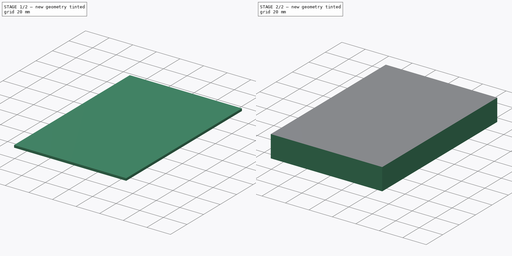
[diagram: build sequence overview — one tinted view per stage of 2, left to right]
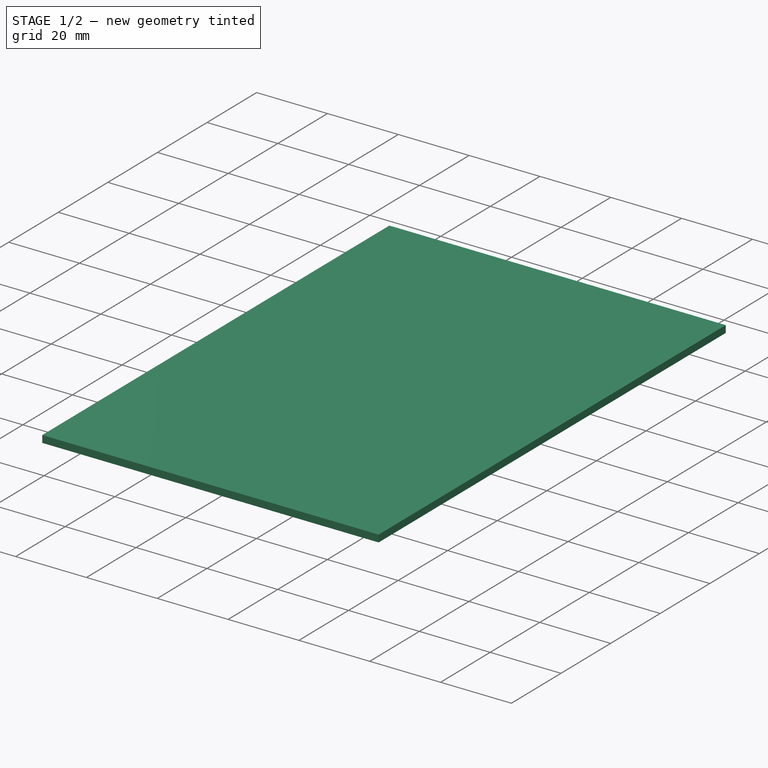
[diagram: stage 1 of 2 — iso view after this stage's code; geometry added in this stage tinted green]
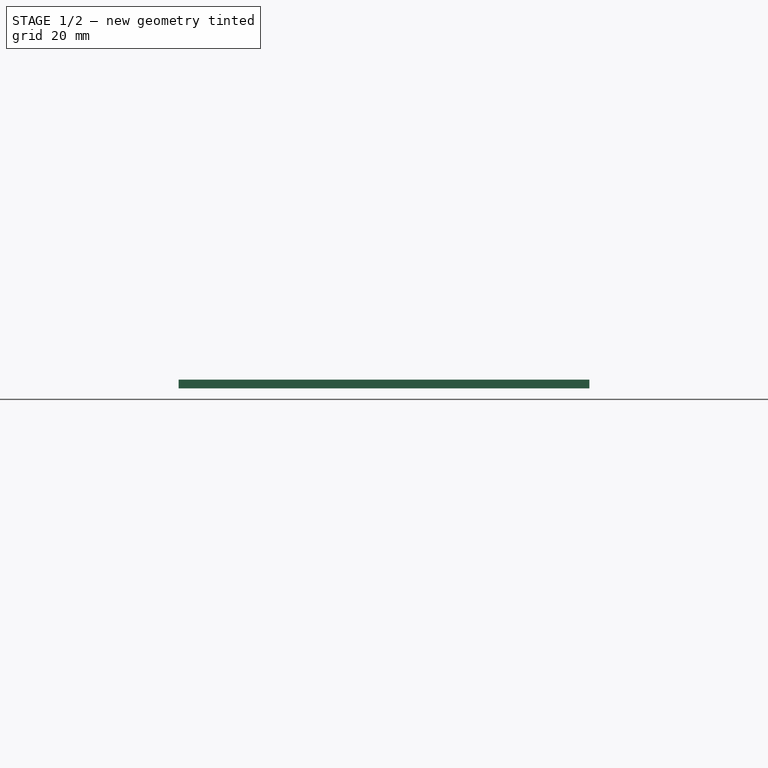
[diagram: stage 1 of 2 — front view after this stage's code; geometry added in this stage tinted green]
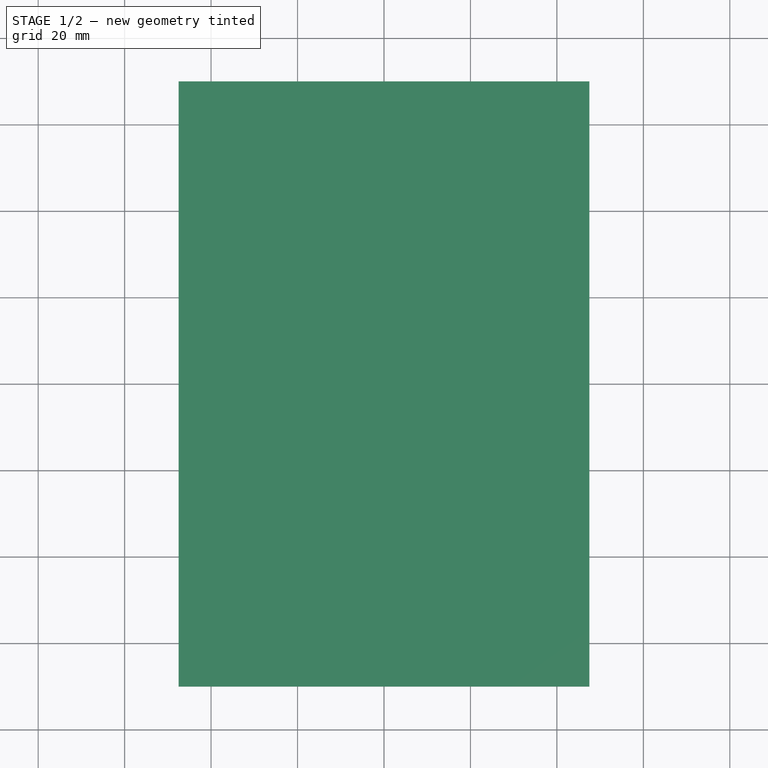
[diagram: stage 1 of 2 — top view after this stage's code; geometry added in this stage tinted green]
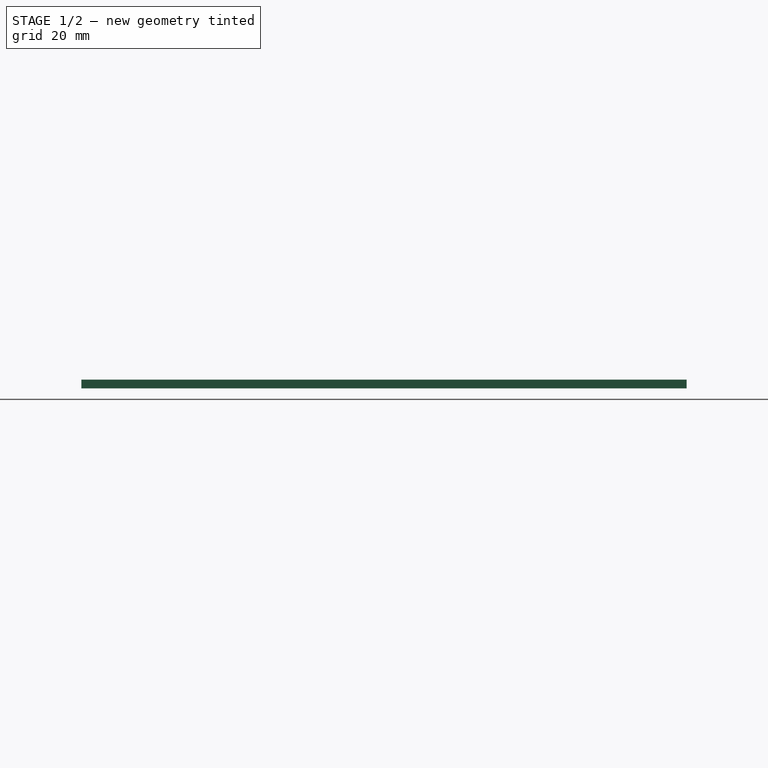
[diagram: stage 1 of 2 — right view after this stage's code; geometry added in this stage tinted green]
FCSTD DOCUMENT  (FreeCAD 1.1R39288 (Git))
Label: hackrf2
License: All rights reserved
LicenseURL: https://en.wikipedia.org/wiki/All_rights_reserved
objects: Sketcher::SketchObject×3, PartDesign::Body×2, PartDesign::Pad×2, PartDesign::SubShapeBinder×1
note: 15 computed .brp shape members not serialized (recipe doc carries the construction recipe); baked Part::Feature solids carry a one-line shape summary decoded from their .brp

FEATURE [Sketcher::SketchObject] Sketch
  ArcFitTolerance = 1e-06
  AttachmentSupport = -> [XY_Plane]
  FullyConstrained = true
  MakeInternals = false
  MapMode = 5
  sketch-geometry (27):
    g0: Circle CenterX=-33.5 CenterY=55.985 CenterZ=0 NormalX=0 NormalY=0 NormalZ=1 AngleXU=0 Radius=1.7
    g1: Circle CenterX=33.5 CenterY=55.985 CenterZ=0 NormalX=0 NormalY=0 NormalZ=1 AngleXU=0 Radius=1.7
    g2: LineSegment [constr] StartX=-35.2 StartY=55.985 StartZ=0 EndX=35.2 EndY=55.985 EndZ=0
    g3: GeomPoint [constr] X=-35.2 Y=55.985 Z=0
    g4: GeomPoint [constr] X=35.2 Y=55.985 Z=0
    g5: Circle CenterX=6.43685 CenterY=10.9396 CenterZ=0 NormalX=0 NormalY=0 NormalZ=1 AngleXU=0 Radius=1.7
    g6: Circle CenterX=33.5 CenterY=-55.985 CenterZ=0 NormalX=0 NormalY=0 NormalZ=1 AngleXU=0 Radius=1.7
    g7: Circle CenterX=-33.5 CenterY=-55.985 CenterZ=0 NormalX=0 NormalY=0 NormalZ=1 AngleXU=0 Radius=1.7
    g8: GeomPoint [constr] X=-34.6278 Y=57.257 Z=0
    g9: GeomPoint [constr] X=7.56463 Y=9.66755 Z=0
    g10: LineSegment [constr] StartX=-34.6278 StartY=57.257 StartZ=0 EndX=7.56463 EndY=9.66755 EndZ=0
    g11: GeomPoint [constr] X=5.56135 Y=9.48237 Z=0
    g12: LineSegment [constr] StartX=34.3755 StartY=57.4422 StartZ=0 EndX=5.56135 EndY=9.48237 EndZ=0
    g13: GeomPoint [constr] X=34.3755 Y=57.4422 Z=0
    g14: LineSegment [constr] StartX=33.5 StartY=57.685 StartZ=0 EndX=33.5 EndY=-57.685 EndZ=0
    g15: GeomPoint [constr] X=33.5 Y=57.685 Z=0
    g16: GeomPoint [constr] X=33.5 Y=-57.685 Z=0
    g17: LineSegment [constr] StartX=35.2 StartY=-55.985 StartZ=0 EndX=-35.2 EndY=-55.985 EndZ=0
    g18: LineSegment [constr] StartX=-33.5 StartY=57.685 StartZ=0 EndX=-33.5 EndY=-57.685 EndZ=0
    g19: GeomPoint [constr] X=8.12422 Y=11.1464 Z=0
    g20: GeomPoint X=0 Y=0 Z=0
    g21: Circle CenterX=-33.5 CenterY=6.045 CenterZ=0 NormalX=0 NormalY=0 NormalZ=1 AngleXU=0 Radius=1.7
    g22: GeomPoint X=-33.5 Y=4.345 Z=0
    g23: GeomPoint X=-33.5 Y=7.745 Z=0
    g24: GeomPoint X=-35.1874 Y=5.8382 Z=0
    g25: GeomPoint X=-33.5 Y=-57.685 Z=0
    g26: LineSegment [constr] StartX=-35.1874 StartY=5.8382 StartZ=0 EndX=8.12422 EndY=11.1464 EndZ=0
  constraints (63):
    c: Diameter(g0) = 3.4
    c: Horizontal(g2)
    c: PointOnObject(g0,g2)
    c: PointOnObject(g1,g2)
    c: Equal(g1,g0)
    c: DistanceX(g3,g4) = 70.4
    c: Equal(g5,g0)
    c: Equal(g6,g0)
    c: Equal(g7,g0)
    c: PointOnObject(g0,g10)
    c: PointOnObject(g5,g10)
    c: Distance(g9,g8) = 63.6
    c: PointOnObject(g5,g12)
    c: PointOnObject(g1,g12)
    c: Distance(g11,g13) = 55.95
    c: Vertical(g14)
    c: PointOnObject(g1,g14)
    c: PointOnObject(g6,g14)
    c: Horizontal(g17)
    c: PointOnObject(g6,g17)
    c: PointOnObject(g7,g17)
    c: Vertical(g18)
    c: PointOnObject(g7,g18)
    c: PointOnObject(g0,g18)
    c: Coincident(g12,g13)
    c: Coincident(g12,g11)
    c: Coincident(g10,g9)
    c: PointOnObject(g9,g5)
    c: PointOnObject(g19,g5)
    c: Coincident(g10,g8)
    c: PointOnObject(g18,g0)
    c: Coincident(g2,g3)
    c: PointOnObject(g2,g0)
    c: PointOnObject(g8,g0)
    c: PointOnObject(g14,g1)
    c: Coincident(g2,g4)
    c: PointOnObject(g2,g1)
    c: Coincident(g16,g14)
    c: PointOnObject(g14,g6)
    c: PointOnObject(g17,g6)
    c: Coincident(g15,g14)
    c: Symmetric(g1,g7,g20)
    c: Coincident(g20,g-1)
    c: Equal(g21,g0)
    c: PointOnObject(g21,g18)
    c: PointOnObject(g22,g21)
    c: PointOnObject(g24,g21)
    c: PointOnObject(g23,g21)
    c: PointOnObject(g22,g18)
    c: PointOnObject(g23,g18)
    c: DistanceY(g22,g18) = 53.34
    c: PointOnObject(g25,g7)
    c: DistanceY(g25,g23) = 65.43
    c: Coincident(g26,g24)
    c: Coincident(g26,g19)
    c: PointOnObject(g21,g26)
    c: PointOnObject(g5,g26)
    c: Coincident(g18,g25)
    c: PointOnObject(g17,g7)
    c: PointOnObject(g11,g5)
    c: Distance(g26,g26) = 43.6357
    c: PointOnObject(g12,g1)
    c: DistanceY(g18,g18) = 115.37
FEATURE [PartDesign::Body] Body  label="Дырки"
  AllowCompound = false
  Group = -> [Sketch]
  Origin = -> Origin
FEATURE [PartDesign::SubShapeBinder] Binder
  BindCopyOnChange = 0
  BindMode = 0
  ClaimChildren = false
  Context = -> Body001 [Binder.]
  Fuse = false
  MakeFace = true
  OffsetFill = false
  OffsetIntersection = false
  OffsetJoinType = 0
  OffsetOpenResult = false
  PartialLoad = false
  Refine = true
  Relative = true
  Support = -> [Body[Sketch.]]
  _Version = 2
FEATURE [Sketcher::SketchObject] Sketch002
  ArcFitTolerance = 1e-06
  AttachmentSupport = -> [XY_Plane001]
  FullyConstrained = true
  MakeInternals = false
  MapMode = 5
  expr: Constraints[8] = 75 mm + 10 mm * 2
  expr: Constraints[9] = 120 mm + 10 mm * 2
  sketch-geometry (4):
    g0: LineSegment StartX=-47.5 StartY=70 StartZ=0 EndX=-47.5 EndY=-70 EndZ=0
    g1: LineSegment StartX=-47.5 StartY=-70 StartZ=0 EndX=47.5 EndY=-70 EndZ=0
    g2: LineSegment StartX=47.5 StartY=-70 StartZ=0 EndX=47.5 EndY=70 EndZ=0
    g3: LineSegment StartX=47.5 StartY=70 StartZ=0 EndX=-47.5 EndY=70 EndZ=0
  constraints (11):
    c: Coincident(g0,g1)
    c: Coincident(g1,g2)
    c: Coincident(g2,g3)
    c: Coincident(g3,g0)
    c: Vertical(g0)
    c: Vertical(g2)
    c: Horizontal(g1)
    c: Horizontal(g3)
    c: DistanceX(g3,g3) = 95
    c: DistanceY(g2,g2) = 140
    c: Symmetric(g2,g0,g-1)
FEATURE [PartDesign::Pad] Pad
  Direction = (0,0,1)
  Length = 2
  Length2 = 10
  Profile = -> Sketch002
  ReferenceAxis = -> Sketch002 [N_Axis]
  Refine = true
  Suppressed = false
  Type = 0
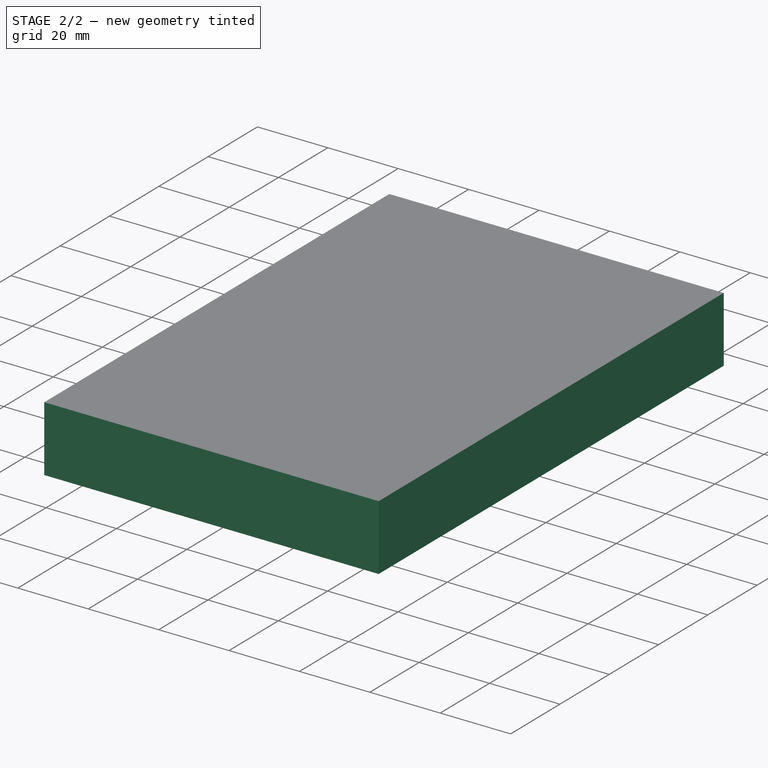
[diagram: stage 2 of 2 — iso view after this stage's code; geometry added in this stage tinted green]
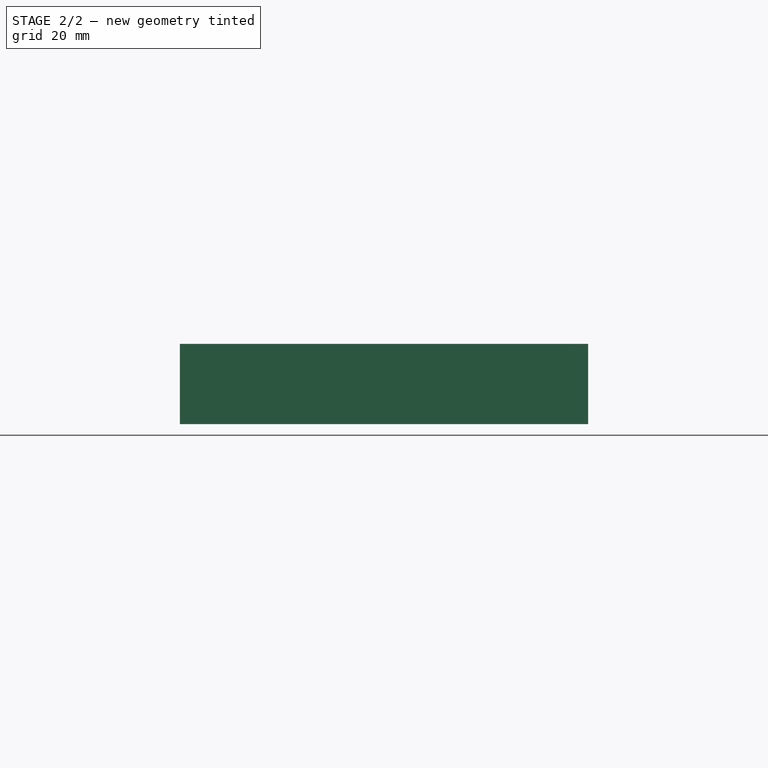
[diagram: stage 2 of 2 — front view after this stage's code; geometry added in this stage tinted green]
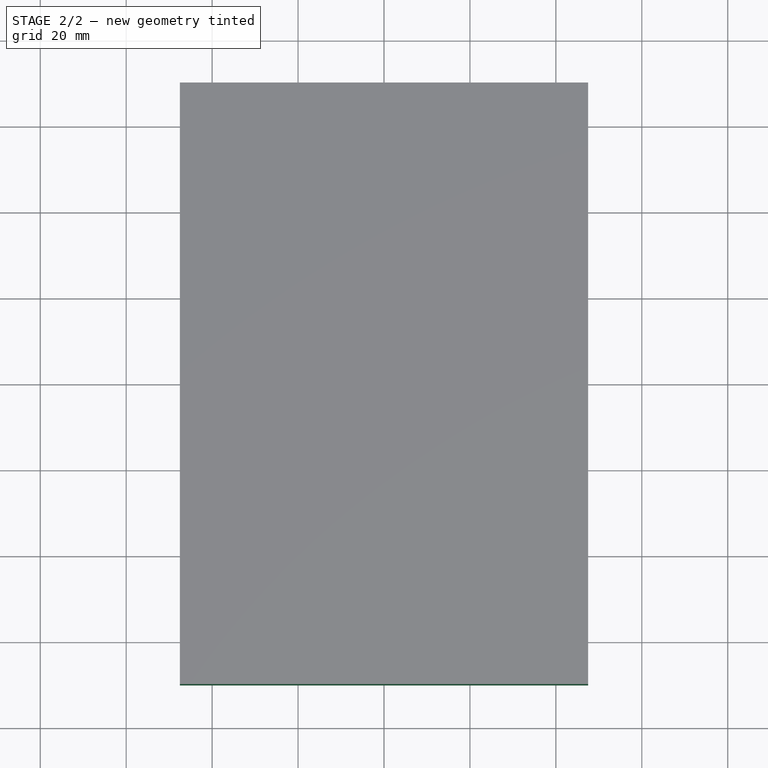
[diagram: stage 2 of 2 — top view after this stage's code; geometry added in this stage tinted green]
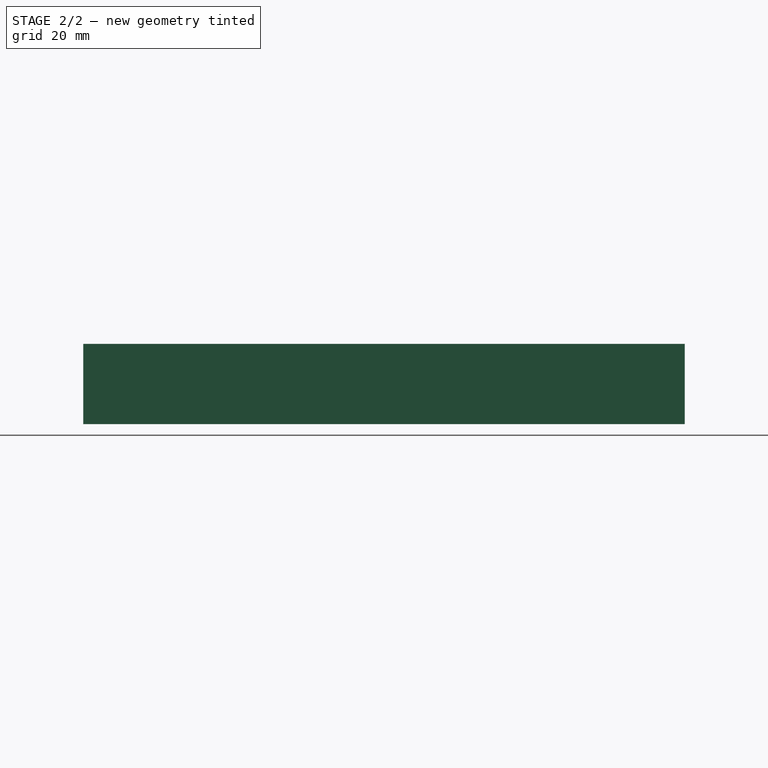
[diagram: stage 2 of 2 — right view after this stage's code; geometry added in this stage tinted green]
FEATURE [Sketcher::SketchObject] Sketch001
  ArcFitTolerance = 1e-06
  AttachmentSupport = -> [XY_Plane001]
  ExternalGeometry = -> [Binder,Pad]
  FullyConstrained = false
  MakeInternals = false
  MapMode = 5
  sketch-geometry (89):
    g0: ArcOfCircle CenterX=-33.5 CenterY=55.985 CenterZ=0 NormalX=0 NormalY=0 NormalZ=1 AngleXU=0 Radius=3.85 StartAngle=1.5708 EndAngle=3.14159
    g1: GeomPoint X=-33.5 Y=57.685 Z=0
    g2: LineSegment StartX=-37.35 StartY=55.985 StartZ=0 EndX=-37.35 EndY=52.135 EndZ=0
    g3: LineSegment StartX=-37.35 StartY=52.135 StartZ=0 EndX=-29.65 EndY=52.135 EndZ=0
    g4: LineSegment StartX=-29.65 StartY=52.135 StartZ=0 EndX=-29.65 EndY=59.835 EndZ=0
    g5: LineSegment StartX=-29.65 StartY=59.835 StartZ=0 EndX=-33.5 EndY=59.835 EndZ=0
    g6: GeomPoint X=-31.8 Y=55.985 Z=0
    g7: GeomPoint X=-29.65 Y=55.985 Z=0
    g8: LineSegment [constr] StartX=-33.5 StartY=57.685 StartZ=0 EndX=-33.5 EndY=59.835 EndZ=0
    g9: LineSegment [constr] StartX=-31.8 StartY=55.985 StartZ=0 EndX=-29.65 EndY=55.985 EndZ=0
    g10: Circle CenterX=-33.5 CenterY=55.985 CenterZ=0 NormalX=0 NormalY=0 NormalZ=1 AngleXU=0 Radius=1
    g11: ArcOfCircle CenterX=33.5 CenterY=55.985 CenterZ=0 NormalX=0 NormalY=0 NormalZ=1 AngleXU=0 Radius=3.15 StartAngle=1e-15 EndAngle=1.5708
    g12: LineSegment StartX=33.5 StartY=59.135 StartZ=0 EndX=29.65 EndY=59.135 EndZ=0
    g13: LineSegment StartX=29.65 StartY=59.135 StartZ=0 EndX=29.65 EndY=52.135 EndZ=0
    g14: LineSegment StartX=29.65 StartY=52.135 StartZ=0 EndX=36.65 EndY=52.135 EndZ=0
    g15: LineSegment StartX=36.65 StartY=52.135 StartZ=0 EndX=36.65 EndY=55.985 EndZ=0
    g16: GeomPoint X=29.65 Y=55.985 Z=0
    g17: GeomPoint X=31.8 Y=55.985 Z=0
    g18: Circle CenterX=33.5 CenterY=55.985 CenterZ=0 NormalX=0 NormalY=0 NormalZ=1 AngleXU=0 Radius=1
    g19: LineSegment [constr] StartX=33.5 StartY=56.985 StartZ=0 EndX=33.5 EndY=59.135 EndZ=0
    g20: LineSegment [constr] StartX=29.65 StartY=55.985 StartZ=0 EndX=31.8 EndY=55.985 EndZ=0
    g21: LineSegment StartX=37.35 StartY=-52.135 StartZ=0 EndX=29.65 EndY=-52.135 EndZ=0
    g22: LineSegment StartX=29.65 StartY=-52.135 StartZ=0 EndX=29.65 EndY=-59.835 EndZ=0
    g23: LineSegment StartX=29.65 StartY=-59.835 StartZ=0 EndX=33.5 EndY=-59.835 EndZ=0
    g24: Circle CenterX=33.5 CenterY=-55.985 CenterZ=0 NormalX=0 NormalY=0 NormalZ=1 AngleXU=0 Radius=1
    g25: LineSegment [constr] StartX=33.5 StartY=-54.285 StartZ=0 EndX=33.5 EndY=-52.135 EndZ=0
    g26: ArcOfCircle CenterX=33.5 CenterY=-55.985 CenterZ=0 NormalX=0 NormalY=0 NormalZ=1 AngleXU=0 Radius=3.85 StartAngle=4.71239 EndAngle=6.28319
    g27: LineSegment [constr] StartX=35.2 StartY=-55.985 StartZ=0 EndX=37.35 EndY=-55.985 EndZ=0
    g28: LineSegment StartX=37.35 StartY=-55.985 StartZ=0 EndX=37.35 EndY=-52.135 EndZ=0
    g29: GeomPoint X=-33.5 Y=-54.285 Z=0
    g30: LineSegment StartX=-33.5 StartY=-59.835 StartZ=0 EndX=-29.65 EndY=-59.835 EndZ=0
    g31: LineSegment StartX=-29.65 StartY=-59.835 StartZ=0 EndX=-29.65 EndY=-52.135 EndZ=0
    g32: LineSegment StartX=-29.65 StartY=-52.135 StartZ=0 EndX=-37.35 EndY=-52.135 EndZ=0
    g33: GeomPoint X=-31.8 Y=-55.985 Z=0
    g34: GeomPoint X=-29.65 Y=-55.985 Z=0
    g35: LineSegment [constr] StartX=-33.5 StartY=-54.285 StartZ=0 EndX=-33.5 EndY=-52.135 EndZ=0
    g36: LineSegment [constr] StartX=-31.8 StartY=-55.985 StartZ=0 EndX=-29.65 EndY=-55.985 EndZ=0
    g37: Circle CenterX=-33.5 CenterY=-55.985 CenterZ=0 NormalX=0 NormalY=0 NormalZ=1 AngleXU=0 Radius=1
    g38: ArcOfCircle CenterX=-33.5 CenterY=-55.985 CenterZ=0 NormalX=0 NormalY=0 NormalZ=1 AngleXU=0 Radius=3.85 StartAngle=3.14159 EndAngle=4.71239
    g39: LineSegment StartX=-37.35 StartY=-55.985 StartZ=0 EndX=-37.35 EndY=-52.135 EndZ=0
    g40: ArcOfCircle CenterX=-32.2167 CenterY=7.32833 CenterZ=0 NormalX=0 NormalY=0 NormalZ=1 AngleXU=0 Radius=2.56667 StartAngle=1e-16 EndAngle=1.5708
    g41: ArcOfCircle CenterX=-32.2167 CenterY=4.76167 CenterZ=0 NormalX=0 NormalY=0 NormalZ=1 AngleXU=0 Radius=2.56667 StartAngle=4.71239 EndAngle=6.28319
    g42: LineSegment StartX=-32.2167 StartY=2.195 StartZ=0 EndX=-37.35 EndY=2.195 EndZ=0
    g43: LineSegment StartX=-37.35 StartY=2.195 StartZ=0 EndX=-37.35 EndY=9.895 EndZ=0
    g44: LineSegment StartX=-37.35 StartY=9.895 StartZ=0 EndX=-32.2167 EndY=9.895 EndZ=0
    g45: LineSegment StartX=-29.65 StartY=7.32833 StartZ=0 EndX=-29.65 EndY=4.76167 EndZ=0
    g46: LineSegment [constr] StartX=-37.35 StartY=6.045 StartZ=0 EndX=-34.7833 EndY=6.045 EndZ=0
    g47: LineSegment [constr] StartX=-34.7833 StartY=6.045 StartZ=0 EndX=-32.2167 EndY=6.045 EndZ=0
    g48: LineSegment [constr] StartX=-32.2167 StartY=6.045 StartZ=0 EndX=-29.65 EndY=6.045 EndZ=0
    g49: GeomPoint [constr] X=-35.2 Y=6.045 Z=0
    g50: LineSegment [constr] StartX=-33.5 StartY=7.745 StartZ=0 EndX=-33.5 EndY=9.895 EndZ=0
    g51: GeomPoint [constr] X=-31.8 Y=6.045 Z=0
    g52: LineSegment [constr] StartX=-37.35 StartY=6.045 StartZ=0 EndX=-35.2 EndY=6.045 EndZ=0
    g53: Circle CenterX=-33.5 CenterY=6.045 CenterZ=0 NormalX=0 NormalY=0 NormalZ=1 AngleXU=0 Radius=1
    g54: LineSegment [constr] StartX=2.58685 StartY=10.9396 StartZ=0 EndX=5.15351 EndY=10.9396 EndZ=0
    g55: LineSegment [constr] StartX=5.15351 StartY=10.9396 StartZ=0 EndX=7.72018 EndY=10.9396 EndZ=0
    g56: LineSegment [constr] StartX=7.72018 StartY=10.9396 StartZ=0 EndX=10.2868 EndY=10.9396 EndZ=0
    g57: Circle CenterX=6.43685 CenterY=10.9396 CenterZ=0 NormalX=0 NormalY=0 NormalZ=1 AngleXU=0 Radius=1
    g58: LineSegment StartX=2.58685 StartY=12.2229 StartZ=0 EndX=2.58685 EndY=9.65626 EndZ=0
    g59: LineSegment StartX=5.15351 StartY=7.0896 StartZ=0 EndX=7.72018 EndY=7.0896 EndZ=0
    g60: LineSegment StartX=10.2868 StartY=9.65626 StartZ=0 EndX=10.2868 EndY=12.2229 EndZ=0
    g61: LineSegment StartX=7.72018 StartY=14.7896 StartZ=0 EndX=5.15351 EndY=14.7896 EndZ=0
    g62: ArcOfCircle CenterX=5.15351 CenterY=12.2229 CenterZ=0 NormalX=0 NormalY=0 NormalZ=1 AngleXU=0 Radius=2.56667 StartAngle=1.5708 EndAngle=3.14159
    g63: ArcOfCircle CenterX=5.15351 CenterY=9.65626 CenterZ=0 NormalX=0 NormalY=0 NormalZ=1 AngleXU=0 Radius=2.56667 StartAngle=3.14159 EndAngle=4.71239
    g64: ArcOfCircle CenterX=7.72018 CenterY=9.65626 CenterZ=0 NormalX=0 NormalY=0 NormalZ=1 AngleXU=0 Radius=2.56667 StartAngle=4.71239 EndAngle=6.28319
    g65: ArcOfCircle CenterX=7.72018 CenterY=12.2229 CenterZ=0 NormalX=0 NormalY=0 NormalZ=1 AngleXU=0 Radius=2.56667 StartAngle=0 EndAngle=1.5708
    g66: GeomPoint [constr] X=2.58685 Y=14.7896 Z=0
    g67: GeomPoint [constr] X=10.2868 Y=7.0896 Z=0
    g68: GeomPoint X=4.73685 Y=10.9396 Z=0
    g69: LineSegment [constr] StartX=-37.35 StartY=52.135 StartZ=0 EndX=-37.35 EndY=-4.41228 EndZ=0
    g70: LineSegment StartX=47.5 StartY=70 StartZ=0 EndX=-47.5 EndY=70 EndZ=0
    g71: LineSegment StartX=-47.5 StartY=70 StartZ=0 EndX=-47.5 EndY=-70 EndZ=0
    g72: LineSegment StartX=-47.5 StartY=-70 StartZ=0 EndX=47.5 EndY=-70 EndZ=0
    g73: LineSegment StartX=47.5 StartY=-70 StartZ=0 EndX=47.5 EndY=70 EndZ=0
    g74: LineSegment StartX=45.5 StartY=68 StartZ=0 EndX=-45.5 EndY=68 EndZ=0
    g75: LineSegment StartX=-45.5 StartY=68 StartZ=0 EndX=-45.5 EndY=-68 EndZ=0
    g76: LineSegment StartX=-45.5 StartY=-68 StartZ=0 EndX=45.5 EndY=-68 EndZ=0
    g77: LineSegment StartX=45.5 StartY=-68 StartZ=0 EndX=45.5 EndY=68 EndZ=0
    g78: LineSegment [constr] StartX=45.5 StartY=-70 StartZ=0 EndX=45.5 EndY=-68 EndZ=0
    g79: LineSegment [constr] StartX=45.5 StartY=-68 StartZ=0 EndX=47.5 EndY=-68 EndZ=0
    g80: GeomPoint [constr] X=-33.4953 Y=56.985 Z=0
    g81: Circle CenterX=-43.7618 CenterY=66.2618 CenterZ=0 NormalX=0 NormalY=0 NormalZ=1 AngleXU=0 Radius=0.888176
    g82: GeomPoint X=-43.7618 Y=70 Z=0
    g83: GeomPoint X=-47.5 Y=66.2618 Z=0
    g84: LineSegment [constr] StartX=-47.5 StartY=66.2618 StartZ=0 EndX=-44.65 EndY=66.2618 EndZ=0
    g85: LineSegment [constr] StartX=-43.7618 StartY=67.15 StartZ=0 EndX=-43.7618 EndY=70 EndZ=0
    g86: LineSegment StartX=-45.5 StartY=62.4801 StartZ=0 EndX=-43.8301 EndY=62.4801 EndZ=0
    g87: LineSegment StartX=-39.9801 StartY=68 StartZ=0 EndX=-39.9801 EndY=66.3301 EndZ=0
    g88: ArcOfCircle CenterX=-43.8301 CenterY=66.3301 CenterZ=0 NormalX=0 NormalY=0 NormalZ=1 AngleXU=0 Radius=3.85 StartAngle=4.71239 EndAngle=6.28319
  constraints (222):
    c: Coincident(g0,g-8)
    c: PointOnObject(g1,g-8)
    c: DistanceY(g1,g0) = 2.15
    c: Horizontal(g0,g0)
    c: Vertical(g0,g0)
    c: Vertical(g1,g0)
    c: Tangent(g0,g2) = -1.5708
    c: Coincident(g2,g3)
    c: Horizontal(g3)
    c: Coincident(g3,g4)
    c: Vertical(g4)
    c: Coincident(g4,g5)
    c: Tangent(g5,g0) = -1.5708
    c: PointOnObject(g6,g-8)
    c: Symmetric(g4,g4,g7)
    c: Equal(g4,g3)
    c: Horizontal(g0,g6)
    c: Coincident(g8,g1)
    c: Coincident(g8,g0)
    c: Coincident(g9,g6)
    c: Coincident(g9,g7)
    c: Diameter(g10) = 2
    c: Coincident(g10,g0)
    c: DistanceX(g9,g9) = 2.15
    c: Coincident(g11,g-3)
    c: Horizontal(g12)
    c: Coincident(g12,g13)
    c: Vertical(g13)
    c: Coincident(g13,g14)
    c: Horizontal(g14)
    c: Coincident(g14,g15)
    c: Coincident(g15,g11)
    c: Coincident(g12,g11)
    c: Vertical(g15)
    c: PointOnObject(g16,g13)
    c: PointOnObject(g17,g-3)
    c: Coincident(g18,g11)
    c: Equal(g18,g10)
    c: PointOnObject(g19,g18)
    c: Coincident(g19,g11)
    c: Vertical(g19)
    c: Vertical(g19,g11)
    c: Coincident(g20,g16)
    c: Coincident(g20,g17)
    c: Horizontal(g20)
    c: Horizontal(g17,g11)
    c: Equal(g19,g8)
    c: Equal(g20,g9)
    c: Equal(g14,g13)
    c: Horizontal(g11,g11)
    c: Horizontal(g21)
    c: Coincident(g21,g22)
    c: Vertical(g22)
    c: Coincident(g22,g23)
    c: Horizontal(g23)
    c: Vertical(g25)
    c: PointOnObject(g25,g-7)
    c: Coincident(g26,g24)
    c: PointOnObject(g25,g21)
    c: PointOnObject(g27,g-7)
    c: Coincident(g27,g26)
    c: Coincident(g28,g21)
    c: Tangent(g26,g23) = -1.5708
    c: Horizontal(g27)
    c: Tangent(g28,g26) = -1.5708
    c: Coincident(g24,g-7)
    c: Vertical(g28)
    c: Equal(g27,g25)
    c: Equal(g25,g20)
    c: Equal(g21,g22)
    c: Vertical(g24,g25)
    c: Equal(g24,g18)
    c: DistanceY(g29,g32) = 2.15
    c: Horizontal(g30)
    c: Coincident(g30,g31)
    c: Vertical(g31)
    c: Coincident(g31,g32)
    c: Symmetric(g31,g31,g34)
    c: Coincident(g35,g29)
    c: Coincident(g36,g33)
    c: Coincident(g36,g34)
    c: Diameter(g37) = 2
    c: DistanceX(g36,g36) = 2.15
    c: PointOnObject(g29,g-6)
    c: PointOnObject(g33,g-6)
    c: Coincident(g38,g37)
    c: Vertical(g39)
    c: Coincident(g32,g39)
    c: Horizontal(g32)
    c: PointOnObject(g35,g32)
    c: Tangent(g38,g30) = -1.5708
    c: Tangent(g39,g38) = 1.5708
    c: Coincident(g-6,g37)
    c: Horizontal(g36)
    c: Horizontal(g33,g37)
    c: Vertical(g35)
    c: Vertical(g29,g37)
    c: Tangent(g41,g42) = 1.5708
    c: Coincident(g42,g43)
    c: Vertical(g43)
    c: Coincident(g43,g44)
    c: Tangent(g40,g45) = 1.5708
    c: Tangent(g45,g41) = 1.5708
    c: Equal(g41,g40)
    c: Horizontal(g42)
    c: Horizontal(g44)
    c: Vertical(g45)
    c: Symmetric(g43,g43,g46)
    c: Coincident(g46,g47)
    c: Horizontal(g47)
    c: Coincident(g47,g48)
    c: PointOnObject(g48,g45)
    c: Equal(g46,g48)
    c: Equal(g48,g47)
    c: PointOnObject(g-5,g47)
    c: Horizontal(g48)
    c: Vertical(g40,g47)
    c: Vertical(g47,g41)
    c: Horizontal(g46)
    c: Coincident(g44,g40)
    c: DistanceX(g46,g49) = 2.15
    c: PointOnObject(g50,g-5)
    c: PointOnObject(g50,g44)
    c: Vertical(g50)
    c: PointOnObject(g51,g-5)
    c: PointOnObject(g51,g48)
    c: DistanceX(g51,g48) = 2.15
    c: Vertical(g50,g-5)
    c: Coincident(g52,g46)
    c: Coincident(g52,g49)
    c: Equal(g52,g50)
    c: PointOnObject(g49,g-5)
    c: Horizontal(g52)
    c: Coincident(g53,g-5)
    c: Equal(g10,g53)
    c: Coincident(g54,g55)
    c: Horizontal(g55)
    c: Coincident(g55,g56)
    c: Coincident(g57,g-4)
    c: Tangent(g58,g62) = -1.5708
    c: Tangent(g58,g63) = -1.5708
    c: Tangent(g59,g63) = -1.5708
    c: Tangent(g59,g64) = -1.5708
    c: Tangent(g60,g64) = -1.5708
    c: Tangent(g60,g65) = -1.5708
    c: Tangent(g61,g65) = -1.5708
    c: Tangent(g61,g62) = -1.5708
    c: Vertical(g58)
    c: Vertical(g60)
    c: Horizontal(g59)
    c: Horizontal(g61)
    c: Equal(g62,g63)
    c: Equal(g63,g64)
    c: Equal(g64,g65)
    c: PointOnObject(g66,g58)
    c: PointOnObject(g66,g61)
    c: PointOnObject(g67,g59)
    c: PointOnObject(g67,g60)
    c: PointOnObject(g54,g58)
    c: PointOnObject(g56,g60)
    c: PointOnObject(g57,g55)
    c: Equal(g54,g55)
    c: Equal(g55,g56)
    c: Equal(g61,g58)
    c: Equal(g54,g61)
    c: Horizontal(g54)
    c: Horizontal(g56)
    c: Equal(g57,g53)
    c: Symmetric(g63,g65,g57)
    c: PointOnObject(g68,g-4)
    c: DistanceX(g54,g68) = 2.15
    c: PointOnObject(g68,g54)
    c: Coincident(g69,g2)
    c: Vertical(g69)
    c: Coincident(g70,g71)
    c: Coincident(g71,g72)
    c: Coincident(g72,g73)
    c: Coincident(g73,g70)
    c: Horizontal(g70)
    c: Horizontal(g72)
    c: Vertical(g71)
    c: Vertical(g73)
    c: Coincident(g70,g-11)
    c: Coincident(g71,g-12)
    c: Coincident(g74,g75)
    c: Coincident(g75,g76)
    c: Coincident(g76,g77)
    c: Coincident(g77,g74)
    c: Horizontal(g74)
    c: Horizontal(g76)
    c: Vertical(g75)
    c: Vertical(g77)
    c: Symmetric(g74,g76,g-1)
    c: DistanceY(g72,g76) = 2
    c: PointOnObject(g78,g72)
    c: Coincident(g78,g76)
    c: Vertical(g78)
    c: Coincident(g78,g79)
    c: PointOnObject(g79,g73)
    c: Horizontal(g79)
    c: Equal(g79,g78)
    c: PointOnObject(g80,g10)
    c: PointOnObject(g82,g70)
    c: PointOnObject(g83,g71)
    c: Coincident(g84,g83)
    c: Horizontal(g84)
    c: Coincident(g85,g82)
    c: Vertical(g85)
    c: PointOnObject(g84,g81)
    c: PointOnObject(g85,g81)
    c: Horizontal(g84,g81)
    c: Vertical(g81,g85)
    c: DistanceY(g85,g85) = 2.85
    c: Equal(g84,g85)
    c: PointOnObject(g86,g75)
    c: Horizontal(g86)
    c: PointOnObject(g87,g74)
    c: Vertical(g87)
    c: Tangent(g88,g87) = 1.5708
    c: Tangent(g88,g86) = -1.5708
    c: Equal(g86,g87)
    c: Equal(g88,g0)
FEATURE [PartDesign::Pad] Pad001
  BaseFeature = -> Pad
  Direction = (0,0,1)
  Length = 16.7
  Length2 = 10
  Profile = -> Sketch001
  ReferenceAxis = -> Sketch001 [N_Axis]
  Refine = true
  Reversed = true
  Suppressed = false
  Type = 0
FEATURE [PartDesign::Body] Body001  label="Тело"
  AllowCompound = false
  Group = -> [Sketch001,Binder,Sketch002,Pad,Pad001]
  Origin = -> Origin001
  Tip = -> Pad001
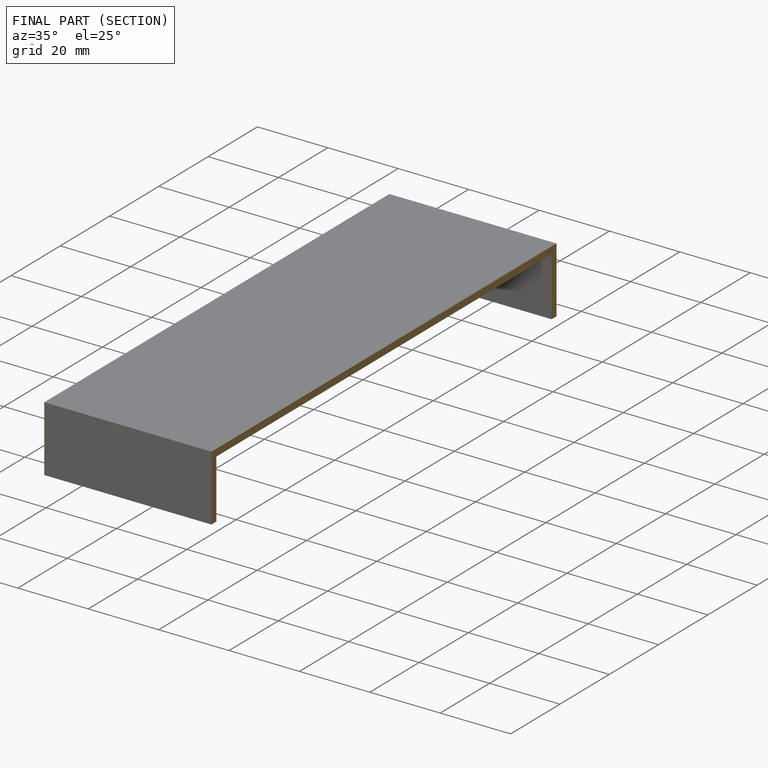
[diagram: finished part — half-section view (interior)]
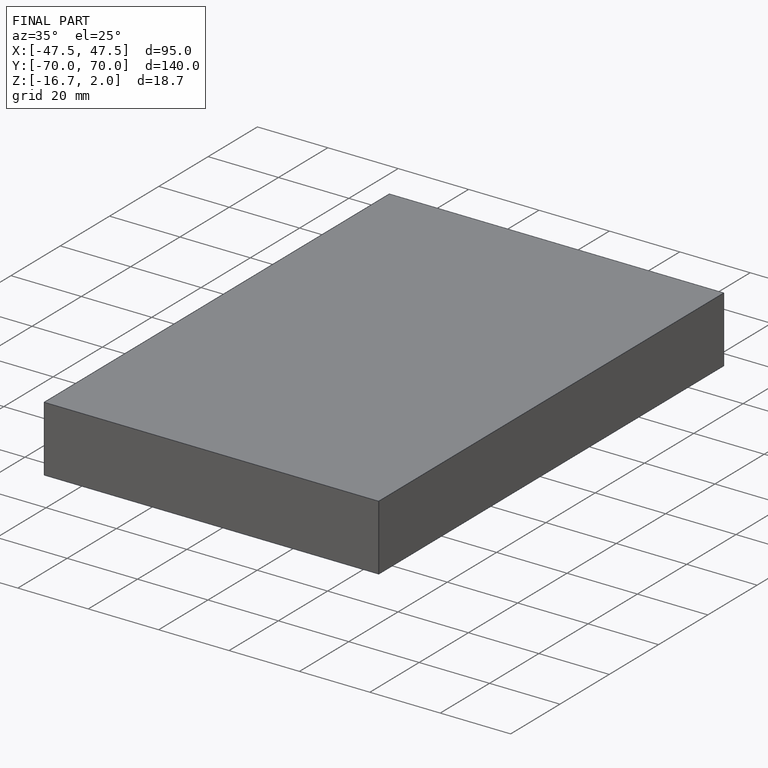
[diagram: finished part — iso view with bounding-box wireframe]
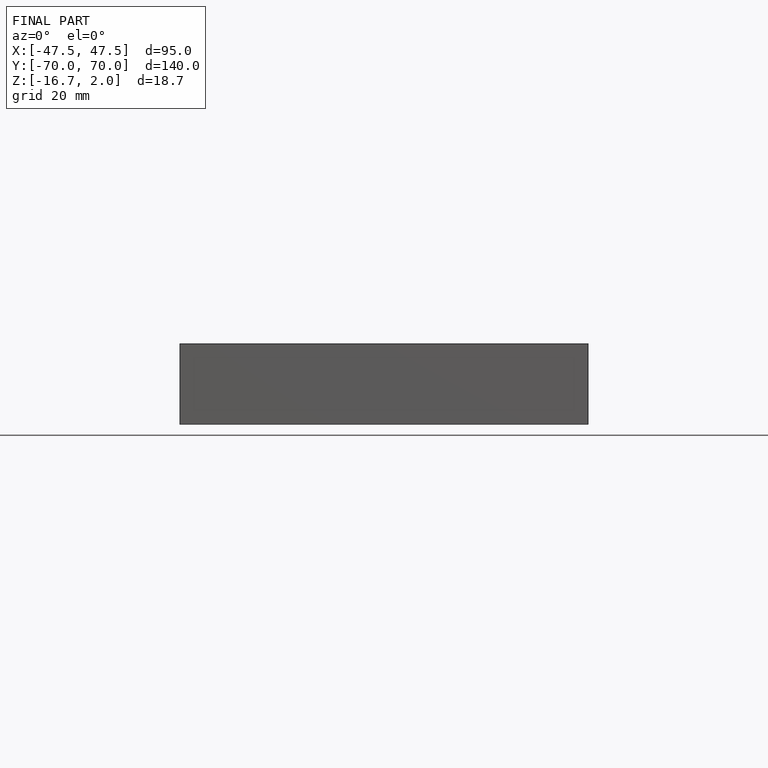
[diagram: finished part — front view with bounding-box wireframe]
